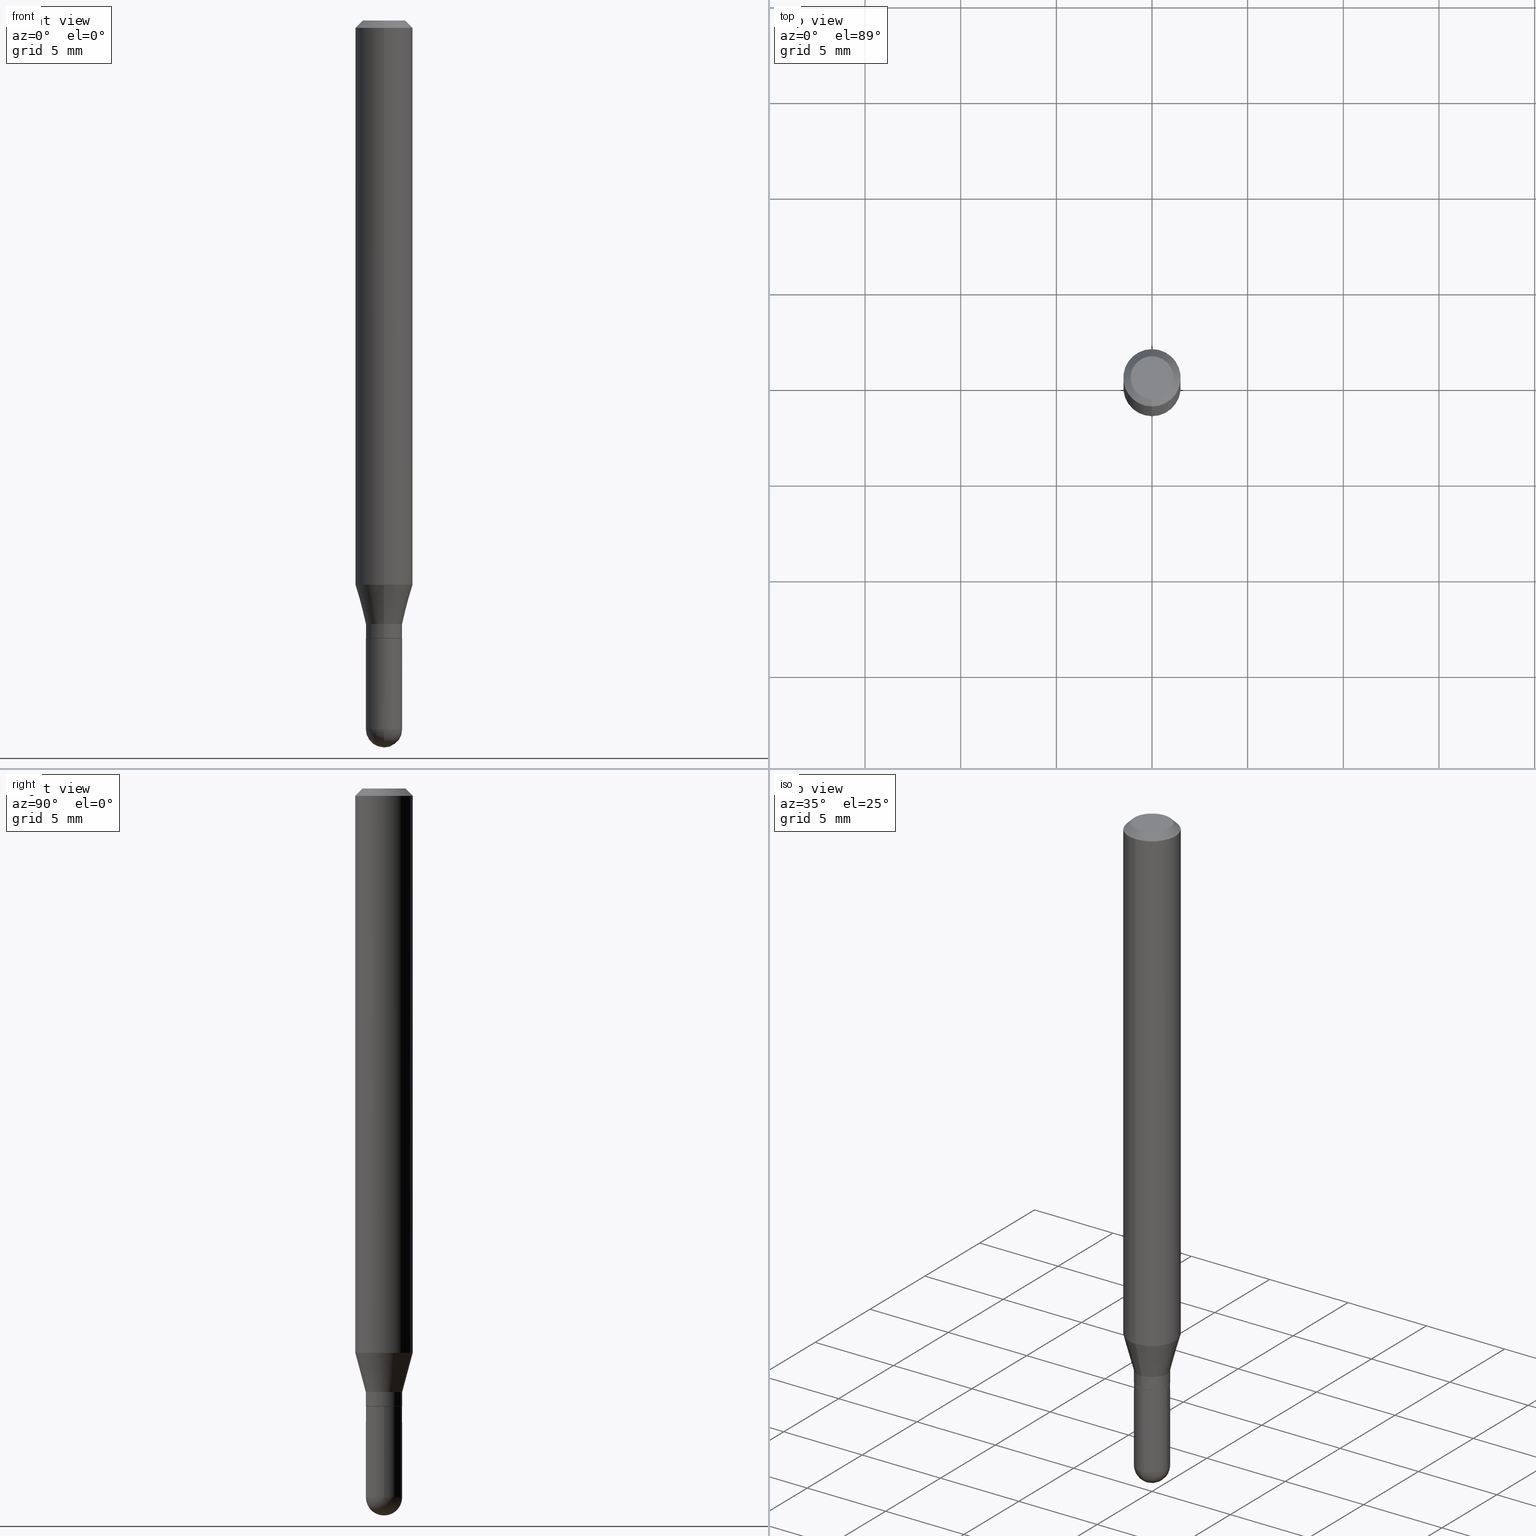
[diagram: canonical four-view strip — front | top / right | iso, engineering-drawing reading convention]
A machine part, canonical four-view strip (front | top / right | iso — engineering-drawing reading convention). The complete STEP part file that produces these views, byte-faithful:
ISO-10303-21;
HEADER;
FILE_DESCRIPTION (( 'STEP AP203' ),
    '1' );
FILE_NAME ('01988.STEP',
    '2024-03-07T19:51:54',
    ( '' ),
    ( '' ),
    'SwSTEP 2.0',
    'SolidWorks 2023',
    '' );
FILE_SCHEMA (( 'CONFIG_CONTROL_DESIGN' ));
ENDSEC;

DATA;
#1 = LINE ( 'NONE', #163, #359 ) ;
#2 = VERTEX_POINT ( 'NONE', #440 ) ;
#3 = DIRECTION ( 'NONE',  ( 1.000000000000000000, -7.105427357601001070E-15, 4.926315508542082329E-29 ) ) ;
#4 = CIRCLE ( 'NONE', #19, 0.03739999999999999575 ) ;
#5 = LINE ( 'NONE', #363, #28 ) ;
#6 = DIRECTION ( 'NONE',  ( -6.982962677686265133E-15, -1.000000000000000000, 3.491483979967474240E-15 ) ) ;
#7 = CIRCLE ( 'NONE', #416, 0.05904999999999999832 ) ;
#8 = DIRECTION ( 'NONE',  ( -2.445466961897875281E-29, 3.491483979967474240E-15, 1.000000000000000000 ) ) ;
#9 = ORIENTED_EDGE ( 'NONE', *, *, #456, .T. ) ;
#10 = FACE_OUTER_BOUND ( 'NONE', #144, .T. ) ;
#11 = EDGE_CURVE ( 'NONE', #348, #459, #488, .T. ) ;
#12 = DATE_AND_TIME ( #371, #239 ) ;
#13 = EDGE_CURVE ( 'NONE', #138, #424, #52, .T. ) ;
#14 = AXIS2_PLACEMENT_3D ( 'NONE', #469, #117, #283 ) ;
#15 =( NAMED_UNIT ( * ) SI_UNIT ( $, .STERADIAN. ) SOLID_ANGLE_UNIT ( ) );
#16 = FACE_OUTER_BOUND ( 'NONE', #35, .T. ) ;
#17 = DIRECTION ( 'NONE',  ( 1.000000000000000000, 0.000000000000000000, 0.000000000000000000 ) ) ;
#18 = ORIENTED_EDGE ( 'NONE', *, *, #494, .T. ) ;
#19 = AXIS2_PLACEMENT_3D ( 'NONE', #502, #112, #132 ) ;
#20 = DIRECTION ( 'NONE',  ( -6.982962677686265922E-15, -1.000000000000000000, 0.000000000000000000 ) ) ;
#21 = ORIENTED_EDGE ( 'NONE', *, *, #356, .T. ) ;
#22 = APPROVAL_DATE_TIME ( #426, #484 ) ;
#23 = CARTESIAN_POINT ( 'NONE',  ( 3.564007025660728008E-29, -5.097604007999306661E-15, -1.458699999999999886 ) ) ;
#24 = CARTESIAN_POINT ( 'NONE',  ( 3.109900335445528210E-29, -4.440120177324636638E-15, -1.271700000000000053 ) ) ;
#25 = ORIENTED_EDGE ( 'NONE', *, *, #403, .T. ) ;
#26 = DIRECTION ( 'NONE',  ( -2.445466961897875281E-29, 3.491483979967474240E-15, 1.000000000000000000 ) ) ;
#27 = VECTOR ( 'NONE', #439, 39.37007874015748143 ) ;
#28 = VECTOR ( 'NONE', #211, 39.37007874015748854 ) ;
#29 = CALENDAR_DATE ( 2024, 7, 3 ) ;
#30 = EDGE_LOOP ( 'NONE', ( #323, #475, #470, #185 ) ) ;
#31 = CARTESIAN_POINT ( 'NONE',  ( 3.564007025660728008E-29, -5.097604007999306661E-15, -1.458699999999999886 ) ) ;
#32 = DIRECTION ( 'NONE',  ( 6.982962677686265922E-15, 1.000000000000000000, -3.505890868245046092E-15 ) ) ;
#33 = VERTEX_POINT ( 'NONE', #51 ) ;
#34 = DIRECTION ( 'NONE',  ( -4.851104656540964275E-15, -0.7071067811865500152, -0.7071067811865450192 ) ) ;
#35 = EDGE_LOOP ( 'NONE', ( #187, #310, #147, #64 ) ) ;
#36 = ORIENTED_EDGE ( 'NONE', *, *, #346, .T. ) ;
#37 = AXIS2_PLACEMENT_3D ( 'NONE', #511, #160, #287 ) ;
#38 = CARTESIAN_POINT ( 'NONE',  ( 2.657429831742768970E-16, 0.03739999999999992636, -1.305815008507832765E-16 ) ) ;
#39 = VERTEX_POINT ( 'NONE', #55 ) ;
#40 = CARTESIAN_POINT ( 'NONE',  ( 5.835404209385290125E-46, -8.331423254187618082E-32, -2.386212653985951345E-17 ) ) ;
#41 = ADVANCED_FACE ( 'NONE', ( #214 ), #94, .F. ) ;
#42 = DIRECTION ( 'NONE',  ( -2.445468806185136597E-29, 3.491481338843145583E-15, 1.000000000000000000 ) ) ;
#43 = ADVANCED_FACE ( 'NONE', ( #79 ), #190, .T. ) ;
#44 = DIRECTION ( 'NONE',  ( 1.000000000000000000, -6.982962677686276177E-15, 0.000000000000000000 ) ) ;
#45 = AXIS2_PLACEMENT_3D ( 'NONE', #374, #449, #20 ) ;
#46 = APPROVAL_PERSON_ORGANIZATION ( #385, #484, #461 ) ;
#47 = CARTESIAN_POINT ( 'NONE',  ( 2.839923472905117553E-29, -4.054664186624940200E-15, -1.161301100016134846 ) ) ;
#48 = CC_DESIGN_PERSON_AND_ORGANIZATION_ASSIGNMENT ( #410, #58, ( #229 ) ) ;
#49 = PERSON_AND_ORGANIZATION ( #325, #407 ) ;
#50 = DIRECTION ( 'NONE',  ( -2.445466961897875281E-29, 3.491483979967474240E-15, 1.000000000000000000 ) ) ;
#51 = CARTESIAN_POINT ( 'NONE',  ( -2.576713228065921345E-16, -0.03690000000000443620, -1.271700000000000275 ) ) ;
#52 = CIRCLE ( 'NONE', #255, 0.03740000000000000269 ) ;
#53 = CONICAL_SURFACE ( 'NONE', #168, 0.05904999999999999832, 0.7853981633974483900 ) ;
#54 = EDGE_LOOP ( 'NONE', ( #467, #409, #496, #313 ) ) ;
#55 = CARTESIAN_POINT ( 'NONE',  ( 3.653868398051285621E-29, -5.230475499586445750E-15, -1.496099999999999985 ) ) ;
#56 = EDGE_LOOP ( 'NONE', ( #145, #258, #261, #288, #336 ) ) ;
#57 = LINE ( 'NONE', #302, #128 ) ;
#58 = PERSON_AND_ORGANIZATION_ROLE ( 'creator' ) ;
#59 = ORIENTED_EDGE ( 'NONE', *, *, #177, .F. ) ;
#60 = DIRECTION ( 'NONE',  ( -6.982962677686265133E-15, -1.000000000000000000, 3.491483979967474240E-15 ) ) ;
#61 = AXIS2_PLACEMENT_3D ( 'NONE', #462, #26, #60 ) ;
#62 = AXIS2_PLACEMENT_3D ( 'NONE', #423, #72, #32 ) ;
#63 = COORDINATED_UNIVERSAL_TIME_OFFSET ( 5, 0, .BEHIND. ) ;
#64 = ORIENTED_EDGE ( 'NONE', *, *, #133, .F. ) ;
#65 = EDGE_CURVE ( 'NONE', #495, #424, #142, .T. ) ;
#66 = VERTEX_POINT ( 'NONE', #265 ) ;
#67 = VERTEX_POINT ( 'NONE', #504 ) ;
#68 = APPLICATION_CONTEXT ( 'configuration controlled 3d designs of mechanical parts and assemblies' ) ;
#69 = DIRECTION ( 'NONE',  ( 5.024295867785445738E-15, 0.7071067811861817543, 0.7071067811869132802 ) ) ;
#70 = CIRCLE ( 'NONE', #297, 0.05904999999999999832 ) ;
#71 = ORIENTED_EDGE ( 'NONE', *, *, #77, .F. ) ;
#72 = DIRECTION ( 'NONE',  ( 2.445466961897875281E-29, -3.491483979967474240E-15, -1.000000000000000000 ) ) ;
#73 = ORIENTED_EDGE ( 'NONE', *, *, #13, .T. ) ;
#74 = EDGE_CURVE ( 'NONE', #162, #235, #285, .T. ) ;
#75 = DIRECTION ( 'NONE',  ( -2.445466961897875561E-29, 3.491483979967474635E-15, 1.000000000000000000 ) ) ;
#76 = CYLINDRICAL_SURFACE ( 'NONE', #382, 0.05904999999999999832 ) ;
#77 = EDGE_CURVE ( 'NONE', #121, #377, #4, .T. ) ;
#78 = PLANE ( 'NONE',  #386 ) ;
#79 = FACE_OUTER_BOUND ( 'NONE', #125, .T. ) ;
#80 = LINE ( 'NONE', #236, #443 ) ;
#81 = DIRECTION ( 'NONE',  ( 1.000000000000000000, -6.982962677686266711E-15, 4.876176775795936353E-29 ) ) ;
#82 = EDGE_LOOP ( 'NONE', ( #217, #352 ) ) ;
#83 = VECTOR ( 'NONE', #482, 39.37007874015748143 ) ;
#84 = DIRECTION ( 'NONE',  ( -2.445466961897875281E-29, 3.491483979967474240E-15, 1.000000000000000000 ) ) ;
#85 = CARTESIAN_POINT ( 'NONE',  ( 3.567205347582258439E-29, -5.093023828970496460E-15, -1.458699999999999886 ) ) ;
#86 = CARTESIAN_POINT ( 'NONE',  ( -0.03740000000000000269, -4.500827340614384492E-15, -1.271700000000000053 ) ) ;
#87 = MANIFOLD_SOLID_BREP ( 'Body-Move/Copy2[1]', #315 ) ;
#88 = CARTESIAN_POINT ( 'NONE',  ( 0.03740000000000000269, -4.701279622752295282E-15, -1.271700000000000053 ) ) ;
#89 = AXIS2_PLACEMENT_3D ( 'NONE', #406, #364, #6 ) ;
#90 = DIRECTION ( 'NONE',  ( -6.982962677686265922E-15, -1.000000000000000000, 4.626330217890369336E-15 ) ) ;
#91 = AXIS2_PLACEMENT_3D ( 'NONE', #149, #505, #264 ) ;
#92 = ADVANCED_FACE ( 'NONE', ( #111 ), #340, .T. ) ;
#93 = FACE_OUTER_BOUND ( 'NONE', #192, .T. ) ;
#94 = PLANE ( 'NONE',  #279 ) ;
#95 = PERSON_AND_ORGANIZATION ( #325, #407 ) ;
#96 = DIRECTION ( 'NONE',  ( -6.982962677686265133E-15, -1.000000000000000000, 3.491483979967474240E-15 ) ) ;
#97 = VECTOR ( 'NONE', #274, 39.37007874015748854 ) ;
#98 = PERSON_AND_ORGANIZATION_ROLE ( 'design_owner' ) ;
#99 = FACE_OUTER_BOUND ( 'NONE', #54, .T. ) ;
#100 = DIRECTION ( 'NONE',  ( -2.445466961897875281E-29, 3.491483979967474240E-15, 1.000000000000000000 ) ) ;
#101 = CARTESIAN_POINT ( 'NONE',  ( 4.123439461173743285E-16, 0.05904999999999994975, -0.01500000000000023016 ) ) ;
#102 = ORIENTED_EDGE ( 'NONE', *, *, #153, .T. ) ;
#103 = ORIENTED_EDGE ( 'NONE', *, *, #356, .F. ) ;
#104 = PERSON_AND_ORGANIZATION ( #325, #407 ) ;
#105 = ORIENTED_EDGE ( 'NONE', *, *, #13, .F. ) ;
#106 = EDGE_LOOP ( 'NONE', ( #59, #463, #115, #307 ) ) ;
#107 = CIRCLE ( 'NONE', #372, 0.03739999999999964880 ) ;
#108 = CC_DESIGN_PERSON_AND_ORGANIZATION_ASSIGNMENT ( #219, #282, ( #229 ) ) ;
#109 = CARTESIAN_POINT ( 'NONE',  ( 4.195754854663675961E-16, 0.05904999999999994281, -0.01500000000000023016 ) ) ;
#110 = VERTEX_POINT ( 'NONE', #477 ) ;
#111 = FACE_OUTER_BOUND ( 'NONE', #455, .T. ) ;
#112 = DIRECTION ( 'NONE',  ( -2.445468806185136597E-29, 3.491481338843145583E-15, 1.000000000000000000 ) ) ;
#113 = PRODUCT ( '01988', '01988', '', ( #216 ) ) ;
#114 = CARTESIAN_POINT ( 'NONE',  ( -4.123439461173736383E-16, -0.05905000000000005383, -0.01499999999999981730 ) ) ;
#115 = ORIENTED_EDGE ( 'NONE', *, *, #471, .T. ) ;
#116 = CARTESIAN_POINT ( 'NONE',  ( -4.123439461173739834E-16, -0.05904999999999999832, 2.061721290170793530E-16 ) ) ;
#117 = DIRECTION ( 'NONE',  ( -2.445466961897875281E-29, 3.491483979967474240E-15, 1.000000000000000000 ) ) ;
#118 = ADVANCED_FACE ( 'NONE', ( #366 ), #429, .T. ) ;
#119 = CARTESIAN_POINT ( 'NONE',  ( 0.000000000000000000, 0.000000000000000000, 0.000000000000000000 ) ) ;
#120 = LINE ( 'NONE', #38, #83 ) ;
#121 = VERTEX_POINT ( 'NONE', #447 ) ;
#122 = APPROVAL_PERSON_ORGANIZATION ( #143, #267, #332 ) ;
#123 = DIRECTION ( 'NONE',  ( -6.982962677686265922E-15, -1.000000000000000000, 3.505890868245046092E-15 ) ) ;
#124 = DIRECTION ( 'NONE',  ( 2.445466961897874720E-29, -3.491483979967474635E-15, -1.000000000000000000 ) ) ;
#125 = EDGE_LOOP ( 'NONE', ( #231, #384, #342, #375 ) ) ;
#126 = DIRECTION ( 'NONE',  ( -6.982962677686265133E-15, -1.000000000000000000, 0.000000000000000000 ) ) ;
#127 = EDGE_CURVE ( 'NONE', #67, #204, #506, .T. ) ;
#128 = VECTOR ( 'NONE', #69, 39.37007874015748143 ) ;
#129 = DIRECTION ( 'NONE',  ( -2.445468806185136597E-29, 3.491481338843145583E-15, 1.000000000000000000 ) ) ;
#130 = CIRCLE ( 'NONE', #435, 0.03739999999999999575 ) ;
#131 = LOCAL_TIME ( 14, 51, 54.00000000000000000, #212 ) ;
#132 = DIRECTION ( 'NONE',  ( 1.000000000000000000, -6.982962677686276177E-15, 0.000000000000000000 ) ) ;
#133 = EDGE_CURVE ( 'NONE', #33, #348, #80, .T. ) ;
#134 = CALENDAR_DATE ( 2024, 7, 3 ) ;
#135 = PRODUCT_DEFINITION_SHAPE ( 'NONE', 'NONE',  #433 ) ;
#136 = APPROVAL_STATUS ( 'not_yet_approved' ) ;
#137 = AXIS2_PLACEMENT_3D ( 'NONE', #357, #198, #503 ) ;
#138 = VERTEX_POINT ( 'NONE', #88 ) ;
#139 = CIRCLE ( 'NONE', #331, 0.03740000000000019698 ) ;
#140 = CC_DESIGN_APPROVAL ( #146, ( #229 ) ) ;
#141 = CARTESIAN_POINT ( 'NONE',  ( -2.611628041454373603E-16, -0.03740000000000453378, -1.242099999999999760 ) ) ;
#142 = LINE ( 'NONE', #334, #358 ) ;
#143 = PERSON_AND_ORGANIZATION ( #325, #407 ) ;
#144 = EDGE_LOOP ( 'NONE', ( #454, #273 ) ) ;
#145 = ORIENTED_EDGE ( 'NONE', *, *, #65, .F. ) ;
#146 = APPROVAL ( #136, 'UNSPECIFIED' ) ;
#147 = ORIENTED_EDGE ( 'NONE', *, *, #11, .F. ) ;
#148 = AXIS2_PLACEMENT_3D ( 'NONE', #205, #242, #81 ) ;
#149 = CARTESIAN_POINT ( 'NONE',  ( 0.000000000000000000, 0.000000000000000000, 0.000000000000000000 ) ) ;
#150 = CYLINDRICAL_SURFACE ( 'NONE', #91, 0.05904999999999999832 ) ;
#151 = SHAPE_DEFINITION_REPRESENTATION ( #135, #170 ) ;
#152 = ORIENTED_EDGE ( 'NONE', *, *, #207, .F. ) ;
#153 = EDGE_CURVE ( 'NONE', #424, #138, #155, .T. ) ;
#154 = FACE_OUTER_BOUND ( 'NONE', #468, .T. ) ;
#155 = CIRCLE ( 'NONE', #270, 0.03740000000000000269 ) ;
#156 = CIRCLE ( 'NONE', #445, 0.03739999999999999575 ) ;
#157 = CC_DESIGN_APPROVAL ( #484, ( #215 ) ) ;
#158 = DIRECTION ( 'NONE',  ( 1.000000000000000000, -6.982962677686274599E-15, 0.000000000000000000 ) ) ;
#159 = DIRECTION ( 'NONE',  ( -1.000000000000000000, 6.982962677686265922E-15, -4.876176775795935793E-29 ) ) ;
#160 = DIRECTION ( 'NONE',  ( -2.445466961897875281E-29, 3.491483979967474240E-15, 1.000000000000000000 ) ) ;
#161 = ADVANCED_FACE ( 'NONE', ( #317 ), #78, .F. ) ;
#162 = VERTEX_POINT ( 'NONE', #338 ) ;
#163 = CARTESIAN_POINT ( 'NONE',  ( 0.03739999999999999575, -2.611628041454663509E-16, 1.823690114147680082E-30 ) ) ;
#164 = ADVANCED_FACE ( 'NONE', ( #193 ), #309, .T. ) ;
#165 = ORIENTED_EDGE ( 'NONE', *, *, #414, .F. ) ;
#166 = ORIENTED_EDGE ( 'NONE', *, *, #343, .F. ) ;
#167 = DIRECTION ( 'NONE',  ( 1.000000000000000000, -6.982962677686276177E-15, 0.000000000000000000 ) ) ;
#168 = AXIS2_PLACEMENT_3D ( 'NONE', #399, #479, #206 ) ;
#169 = CARTESIAN_POINT ( 'NONE',  ( 2.639666263349065723E-16, 0.03689999999999556135, -1.271700000000000275 ) ) ;
#170 = ADVANCED_BREP_SHAPE_REPRESENTATION ( '01988', ( #87, #254, #271 ), #316 ) ;
#171 = EDGE_CURVE ( 'NONE', #39, #121, #222, .T. ) ;
#172 = FACE_OUTER_BOUND ( 'NONE', #286, .T. ) ;
#173 = CARTESIAN_POINT ( 'NONE',  ( 3.564007025660728008E-29, -5.097604007999306661E-15, -1.458699999999999886 ) ) ;
#174 = CC_DESIGN_DATE_AND_TIME_ASSIGNMENT ( #12, #486, ( #433 ) ) ;
#175 = CARTESIAN_POINT ( 'NONE',  ( 0.000000000000000000, 0.000000000000000000, 0.000000000000000000 ) ) ;
#176 = CIRCLE ( 'NONE', #365, 0.05904999999999999832 ) ;
#177 = EDGE_CURVE ( 'NONE', #183, #431, #296, .T. ) ;
#178 = APPLICATION_PROTOCOL_DEFINITION ( 'international standard', 'config_control_design', 1994, #345 ) ;
#179 = LINE ( 'NONE', #141, #97 ) ;
#180 = CARTESIAN_POINT ( 'NONE',  ( -0.03739999999999999575, -4.500827340614384492E-15, -1.458699999999999886 ) ) ;
#181 = ORIENTED_EDGE ( 'NONE', *, *, #171, .F. ) ;
#182 = AXIS2_PLACEMENT_3D ( 'NONE', #339, #50, #96 ) ;
#183 = VERTEX_POINT ( 'NONE', #232 ) ;
#184 = EDGE_CURVE ( 'NONE', #458, #459, #57, .T. ) ;
#185 = ORIENTED_EDGE ( 'NONE', *, *, #249, .T. ) ;
#186 = ORIENTED_EDGE ( 'NONE', *, *, #343, .T. ) ;
#187 = ORIENTED_EDGE ( 'NONE', *, *, #480, .T. ) ;
#188 = DESIGN_CONTEXT ( 'detailed design', #345, 'design' ) ;
#189 = LINE ( 'NONE', #314, #291 ) ;
#190 = CONICAL_SURFACE ( 'NONE', #245, 0.03690000000000000224, 0.7853981633969275844 ) ;
#191 = CIRCLE ( 'NONE', #474, 0.03739999999999986391 ) ;
#192 = EDGE_LOOP ( 'NONE', ( #411, #21, #278, #152 ) ) ;
#193 = FACE_OUTER_BOUND ( 'NONE', #464, .T. ) ;
#194 = ADVANCED_FACE ( 'NONE', ( #16 ), #347, .T. ) ;
#195 = DATE_AND_TIME ( #29, #396 ) ;
#196 = CARTESIAN_POINT ( 'NONE',  ( 3.564007025660728008E-29, -5.097604007999306661E-15, -1.458699999999999886 ) ) ;
#197 = DIRECTION ( 'NONE',  ( -6.982962677686266711E-15, -1.000000000000000000, 0.000000000000000000 ) ) ;
#198 = DIRECTION ( 'NONE',  ( -2.445468806185136597E-29, 3.491481338843145583E-15, 1.000000000000000000 ) ) ;
#199 = AXIS2_PLACEMENT_3D ( 'NONE', #31, #378, #388 ) ;
#200 = VECTOR ( 'NONE', #257, 39.37007874015748143 ) ;
#201 = DIRECTION ( 'NONE',  ( -6.982962677686265922E-15, -1.000000000000000000, 0.000000000000000000 ) ) ;
#202 = ADVANCED_FACE ( 'NONE', ( #381 ), #150, .T. ) ;
#203 = DIRECTION ( 'NONE',  ( 1.000000000000000000, -6.982962677686265922E-15, 4.883557194083112901E-29 ) ) ;
#204 = VERTEX_POINT ( 'NONE', #109 ) ;
#205 = CARTESIAN_POINT ( 'NONE',  ( 0.000000000000000000, 0.000000000000000000, 0.000000000000000000 ) ) ;
#206 = DIRECTION ( 'NONE',  ( 6.982962677686265922E-15, 1.000000000000000000, -3.505890868245046092E-15 ) ) ;
#207 = EDGE_CURVE ( 'NONE', #348, #66, #189, .T. ) ;
#208 = CIRCLE ( 'NONE', #489, 0.03690000000000000224 ) ;
#209 = DIRECTION ( 'NONE',  ( -2.445466961897875281E-29, 3.491483979967474240E-15, 1.000000000000000000 ) ) ;
#210 = EDGE_CURVE ( 'NONE', #66, #162, #179, .T. ) ;
#211 = DIRECTION ( 'NONE',  ( 1.839019923739604654E-15, 0.2588190451025255689, 0.9659258262890669799 ) ) ;
#212 = COORDINATED_UNIVERSAL_TIME_OFFSET ( 5, 0, .BEHIND. ) ;
#213 = AXIS2_PLACEMENT_3D ( 'NONE', #327, #8, #362 ) ;
#214 = FACE_OUTER_BOUND ( 'NONE', #322, .T. ) ;
#215 = SECURITY_CLASSIFICATION ( '', '', #268 ) ;
#216 = MECHANICAL_CONTEXT ( 'NONE', #68, 'mechanical' ) ;
#217 = ORIENTED_EDGE ( 'NONE', *, *, #480, .F. ) ;
#218 = DIRECTION ( 'NONE',  ( -6.982962677686266711E-15, -1.000000000000000000, 0.000000000000000000 ) ) ;
#219 = PERSON_AND_ORGANIZATION ( #325, #407 ) ;
#220 = DIRECTION ( 'NONE',  ( -2.445466961897875281E-29, 3.491483979967474240E-15, 1.000000000000000000 ) ) ;
#221 = EDGE_CURVE ( 'NONE', #459, #348, #107, .T. ) ;
#222 = CIRCLE ( 'NONE', #199, 0.03739999999999986391 ) ;
#223 = CALENDAR_DATE ( 2024, 7, 3 ) ;
#224 = PERSON_AND_ORGANIZATION_ROLE ( 'classification_officer' ) ;
#225 = DIRECTION ( 'NONE',  ( -6.982962677686265922E-15, -1.000000000000000000, 3.491483979967474240E-15 ) ) ;
#226 = AXIS2_PLACEMENT_3D ( 'NONE', #391, #421, #197 ) ;
#227 = CC_DESIGN_PERSON_AND_ORGANIZATION_ASSIGNMENT ( #104, #224, ( #215 ) ) ;
#228 = AXIS2_PLACEMENT_3D ( 'NONE', #293, #124, #472 ) ;
#229 = PRODUCT_DEFINITION_FORMATION_WITH_SPECIFIED_SOURCE ( 'ANY', '', #113, .NOT_KNOWN. ) ;
#230 = DATE_TIME_ROLE ( 'classification_date' ) ;
#231 = ORIENTED_EDGE ( 'NONE', *, *, #184, .F. ) ;
#232 = CARTESIAN_POINT ( 'NONE',  ( -3.536586717851222218E-16, -0.04404999999999999888, 1.299377427777077181E-16 ) ) ;
#233 = LINE ( 'NONE', #393, #350 ) ;
#234 = CC_DESIGN_PERSON_AND_ORGANIZATION_ASSIGNMENT ( #446, #453, ( #433 ) ) ;
#235 = VERTEX_POINT ( 'NONE', #114 ) ;
#236 = CARTESIAN_POINT ( 'NONE',  ( -2.576713228065921345E-16, -0.03690000000000443620, -1.271700000000000275 ) ) ;
#237 = CARTESIAN_POINT ( 'NONE',  ( 3.567205347582258439E-29, -5.093023828970496460E-15, -1.458699999999999886 ) ) ;
#238 = CONICAL_SURFACE ( 'NONE', #14, 0.03740000000000019698, 0.2617993877991509066 ) ;
#239 = LOCAL_TIME ( 14, 51, 54.00000000000000000, #448 ) ;
#240 = CARTESIAN_POINT ( 'NONE',  ( 2.657429831743050987E-16, 0.03739999999999508301, -1.271200000000000108 ) ) ;
#241 = DIRECTION ( 'NONE',  ( -6.982962677686265922E-15, -1.000000000000000000, 0.000000000000000000 ) ) ;
#242 = DIRECTION ( 'NONE',  ( -2.445468806185136597E-29, 3.491481338843145583E-15, 1.000000000000000000 ) ) ;
#243 = DIRECTION ( 'NONE',  ( -2.445468806185136597E-29, 3.491481338843145583E-15, 1.000000000000000000 ) ) ;
#244 = ADVANCED_FACE ( 'NONE', ( #277 ), #395, .T. ) ;
#245 = AXIS2_PLACEMENT_3D ( 'NONE', #360, #100, #490 ) ;
#246 = CIRCLE ( 'NONE', #256, 0.04404999999999999888 ) ;
#247 = CC_DESIGN_SECURITY_CLASSIFICATION ( #215, ( #229 ) ) ;
#248 = DIRECTION ( 'NONE',  ( -2.445466961897875281E-29, 3.491483979967474240E-15, 1.000000000000000000 ) ) ;
#249 = EDGE_CURVE ( 'NONE', #204, #235, #176, .T. ) ;
#250 = UNCERTAINTY_MEASURE_WITH_UNIT (LENGTH_MEASURE( 1.000000000000000082E-05 ), #300, 'distance_accuracy_value', 'NONE');
#251 = CARTESIAN_POINT ( 'NONE',  ( 2.611628041454974123E-16, 0.03739999999999556179, -1.271700000000000053 ) ) ;
#252 = CC_DESIGN_DATE_AND_TIME_ASSIGNMENT ( #195, #230, ( #215 ) ) ;
#253 = LENGTH_MEASURE_WITH_UNIT ( LENGTH_MEASURE( 0.02539999999999999897 ), #408 );
#254 = MANIFOLD_SOLID_BREP ( 'Body-Move/Copy2[2]', #290 ) ;
#255 = AXIS2_PLACEMENT_3D ( 'NONE', #259, #483, #405 ) ;
#256 = AXIS2_PLACEMENT_3D ( 'NONE', #40, #442, #329 ) ;
#257 = DIRECTION ( 'NONE',  ( 4.937700262164548042E-15, 0.7071067811865451302, -0.7071067811865499042 ) ) ;
#258 = ORIENTED_EDGE ( 'NONE', *, *, #425, .T. ) ;
#259 = CARTESIAN_POINT ( 'NONE',  ( 3.109902680825638129E-29, -4.440116818606828093E-15, -1.271700000000000053 ) ) ;
#260 = APPROVAL_DATE_TIME ( #451, #146 ) ;
#261 = ORIENTED_EDGE ( 'NONE', *, *, #77, .T. ) ;
#262 = DIRECTION ( 'NONE',  ( -6.982962677686265922E-15, -1.000000000000000000, 3.491483979967474635E-15 ) ) ;
#263 = ADVANCED_FACE ( 'NONE', ( #99 ), #501, .T. ) ;
#264 = DIRECTION ( 'NONE',  ( -6.982962677686265922E-15, -1.000000000000000000, 3.491483979967474240E-15 ) ) ;
#265 = CARTESIAN_POINT ( 'NONE',  ( -2.611628041454373603E-16, -0.03740000000000453378, -1.242099999999999760 ) ) ;
#266 = DIRECTION ( 'NONE',  ( 0.000000000000000000, 0.000000000000000000, 1.000000000000000000 ) ) ;
#267 = APPROVAL ( #301, 'UNSPECIFIED' ) ;
#268 = SECURITY_CLASSIFICATION_LEVEL ( 'unclassified' ) ;
#269 = EDGE_LOOP ( 'NONE', ( #103, #312, #276, #165 ) ) ;
#270 = AXIS2_PLACEMENT_3D ( 'NONE', #441, #481, #158 ) ;
#271 = AXIS2_PLACEMENT_3D ( 'NONE', #175, #266, #17 ) ;
#272 = ADVANCED_FACE ( 'NONE', ( #420 ), #76, .T. ) ;
#273 = ORIENTED_EDGE ( 'NONE', *, *, #177, .T. ) ;
#274 = DIRECTION ( 'NONE',  ( -1.807323732225334478E-15, -0.2588190451025187966, 0.9659258262890687563 ) ) ;
#275 = EDGE_LOOP ( 'NONE', ( #413, #36, #418, #497 ) ) ;
#276 = ORIENTED_EDGE ( 'NONE', *, *, #207, .T. ) ;
#277 = FACE_OUTER_BOUND ( 'NONE', #106, .T. ) ;
#278 = ORIENTED_EDGE ( 'NONE', *, *, #494, .F. ) ;
#279 = AXIS2_PLACEMENT_3D ( 'NONE', #251, #509, #159 ) ;
#280 = CIRCLE ( 'NONE', #45, 0.03740000000000019698 ) ;
#281 = CC_DESIGN_APPROVAL ( #267, ( #433 ) ) ;
#282 = PERSON_AND_ORGANIZATION_ROLE ( 'design_supplier' ) ;
#283 = DIRECTION ( 'NONE',  ( -6.982962677686265922E-15, -1.000000000000000000, 0.000000000000000000 ) ) ;
#284 = ADVANCED_FACE ( 'NONE', ( #154 ), #238, .T. ) ;
#285 = LINE ( 'NONE', #116, #27 ) ;
#286 = EDGE_LOOP ( 'NONE', ( #18, #25, #376, #508 ) ) ;
#287 = DIRECTION ( 'NONE',  ( -6.982962677686265133E-15, -1.000000000000000000, 0.000000000000000000 ) ) ;
#288 = ORIENTED_EDGE ( 'NONE', *, *, #430, .T. ) ;
#289 = CARTESIAN_POINT ( 'NONE',  ( 2.839923472905117553E-29, -4.054664186624940200E-15, -1.161301100016134846 ) ) ;
#290 = CLOSED_SHELL ( 'NONE', ( #512, #194, #244, #202, #465, #284, #272, #389, #444, #161, #43, #118 ) ) ;
#291 = VECTOR ( 'NONE', #311, 39.37007874015748143 ) ;
#292 = CARTESIAN_POINT ( 'NONE',  ( 3.109900335445529331E-29, -4.440120177324638216E-15, -1.271700000000000275 ) ) ;
#293 = CARTESIAN_POINT ( 'NONE',  ( 3.075995059520799729E-16, 0.04404999999999999888, -1.657309325874969883E-16 ) ) ;
#294 = LINE ( 'NONE', #101, #200 ) ;
#295 = EDGE_LOOP ( 'NONE', ( #9, #402, #306, #355 ) ) ;
#296 = CIRCLE ( 'NONE', #61, 0.04404999999999999888 ) ;
#297 = AXIS2_PLACEMENT_3D ( 'NONE', #324, #209, #123 ) ;
#298 = DATE_AND_TIME ( #383, #131 ) ;
#299 = EDGE_CURVE ( 'NONE', #183, #235, #233, .T. ) ;
#300 =( CONVERSION_BASED_UNIT ( 'INCH', #253 ) LENGTH_UNIT ( ) NAMED_UNIT ( #419 ) );
#301 = APPROVAL_STATUS ( 'not_yet_approved' ) ;
#302 = CARTESIAN_POINT ( 'NONE',  ( 2.621902694955080459E-16, 0.03689999999999556135, -1.271700000000000275 ) ) ;
#303 = DIRECTION ( 'NONE',  ( -2.445468806185136877E-29, 3.491481338843145188E-15, 1.000000000000000000 ) ) ;
#304 = APPLICATION_PROTOCOL_DEFINITION ( 'international standard', 'config_control_design', 1994, #68 ) ;
#305 = EDGE_CURVE ( 'NONE', #458, #33, #387, .T. ) ;
#306 = ORIENTED_EDGE ( 'NONE', *, *, #471, .F. ) ;
#307 = ORIENTED_EDGE ( 'NONE', *, *, #491, .F. ) ;
#308 = CIRCLE ( 'NONE', #400, 0.05904999999999999832 ) ;
#309 = CYLINDRICAL_SURFACE ( 'NONE', #137, 0.03739999999999999575 ) ;
#310 = ORIENTED_EDGE ( 'NONE', *, *, #184, .T. ) ;
#311 = DIRECTION ( 'NONE',  ( -2.445466961897875561E-29, 3.491483979967474635E-15, 1.000000000000000000 ) ) ;
#312 = ORIENTED_EDGE ( 'NONE', *, *, #221, .T. ) ;
#313 = ORIENTED_EDGE ( 'NONE', *, *, #373, .F. ) ;
#314 = CARTESIAN_POINT ( 'NONE',  ( -2.611628041454658086E-16, -0.03739999999999992636, 1.305815008507832765E-16 ) ) ;
#315 = CLOSED_SHELL ( 'NONE', ( #164, #92, #41, #263, #319 ) ) ;
#316 =( GEOMETRIC_REPRESENTATION_CONTEXT ( 3 ) GLOBAL_UNCERTAINTY_ASSIGNED_CONTEXT ( ( #250 ) ) GLOBAL_UNIT_ASSIGNED_CONTEXT ( ( #300, #492, #15 ) ) REPRESENTATION_CONTEXT ( 'NONE', 'WORKASPACE' ) );
#317 = FACE_OUTER_BOUND ( 'NONE', #82, .T. ) ;
#318 = DIRECTION ( 'NONE',  ( 1.000000000000000000, -6.982962677686265922E-15, 4.883557194083112901E-29 ) ) ;
#319 = ADVANCED_FACE ( 'NONE', ( #398 ), #328, .T. ) ;
#320 = PLANE ( 'NONE',  #228 ) ;
#321 = EDGE_CURVE ( 'NONE', #39, #2, #191, .T. ) ;
#322 = EDGE_LOOP ( 'NONE', ( #73, #102 ) ) ;
#323 = ORIENTED_EDGE ( 'NONE', *, *, #299, .F. ) ;
#324 = CARTESIAN_POINT ( 'NONE',  ( 3.668200442846818877E-31, -5.237225969951219545E-17, -0.01500000000000002373 ) ) ;
#325 = PERSON ( 'UNSPECIFIED', 'UNSPECIFIED', 'UNSPECIFIED', ('UNSPECIFIED'), ('UNSPECIFIED'), ('UNSPECIFIED') ) ;
#326 = CIRCLE ( 'NONE', #450, 0.03739999999999999575 ) ;
#327 = CARTESIAN_POINT ( 'NONE',  ( 3.037514513373350346E-29, -4.336772251517599617E-15, -1.242099999999999760 ) ) ;
#328 = CYLINDRICAL_SURFACE ( 'NONE', #148, 0.03739999999999999575 ) ;
#329 = DIRECTION ( 'NONE',  ( -6.982962677686265133E-15, -1.000000000000000000, 3.491483979967474240E-15 ) ) ;
#330 = CC_DESIGN_PERSON_AND_ORGANIZATION_ASSIGNMENT ( #49, #98, ( #113 ) ) ;
#331 = AXIS2_PLACEMENT_3D ( 'NONE', #438, #473, #201 ) ;
#332 = APPROVAL_ROLE ( '' ) ;
#333 = ORIENTED_EDGE ( 'NONE', *, *, #430, .F. ) ;
#334 = CARTESIAN_POINT ( 'NONE',  ( -0.03739999999999999575, 2.657429831742774393E-16, -1.839681723755334690E-30 ) ) ;
#335 = APPROVAL_DATE_TIME ( #298, #267 ) ;
#336 = ORIENTED_EDGE ( 'NONE', *, *, #153, .F. ) ;
#337 = ORIENTED_EDGE ( 'NONE', *, *, #373, .T. ) ;
#338 = CARTESIAN_POINT ( 'NONE',  ( -4.123439461173458802E-16, -0.05905000000000408533, -1.161301100016134624 ) ) ;
#339 = CARTESIAN_POINT ( 'NONE',  ( 0.000000000000000000, 0.000000000000000000, 0.000000000000000000 ) ) ;
#340 = SPHERICAL_SURFACE ( 'NONE', #507, 0.03739999999999986391 ) ;
#341 = CYLINDRICAL_SURFACE ( 'NONE', #182, 0.03739999999999992636 ) ;
#342 = ORIENTED_EDGE ( 'NONE', *, *, #133, .T. ) ;
#343 = EDGE_CURVE ( 'NONE', #377, #2, #130, .T. ) ;
#344 = ORIENTED_EDGE ( 'NONE', *, *, #321, .T. ) ;
#345 = APPLICATION_CONTEXT ( 'configuration controlled 3d designs of mechanical parts and assemblies' ) ;
#346 = EDGE_CURVE ( 'NONE', #67, #162, #308, .T. ) ;
#347 = CONICAL_SURFACE ( 'NONE', #498, 0.03690000000000000224, 0.7853981633969275844 ) ;
#348 = VERTEX_POINT ( 'NONE', #394 ) ;
#349 = CARTESIAN_POINT ( 'NONE',  ( 3.108677601964578920E-29, -4.438374435334654091E-15, -1.271200000000000108 ) ) ;
#350 = VECTOR ( 'NONE', #34, 39.37007874015748143 ) ;
#351 = DIRECTION ( 'NONE',  ( -2.445466961897874720E-29, 3.491483979967474635E-15, 1.000000000000000000 ) ) ;
#352 = ORIENTED_EDGE ( 'NONE', *, *, #305, .F. ) ;
#353 = CARTESIAN_POINT ( 'NONE',  ( 3.109900335445529331E-29, -4.440120177324638216E-15, -1.271700000000000275 ) ) ;
#354 = DIRECTION ( 'NONE',  ( -2.445466961897875281E-29, 3.491483979967474240E-15, 1.000000000000000000 ) ) ;
#355 = ORIENTED_EDGE ( 'NONE', *, *, #74, .F. ) ;
#356 = EDGE_CURVE ( 'NONE', #459, #110, #120, .T. ) ;
#357 = CARTESIAN_POINT ( 'NONE',  ( 0.000000000000000000, 0.000000000000000000, 0.000000000000000000 ) ) ;
#358 = VECTOR ( 'NONE', #303, 39.37007874015748143 ) ;
#359 = VECTOR ( 'NONE', #434, 39.37007874015748143 ) ;
#360 = CARTESIAN_POINT ( 'NONE',  ( 3.109900335445529331E-29, -4.440120177324638216E-15, -1.271700000000000275 ) ) ;
#361 = CARTESIAN_POINT ( 'NONE',  ( 3.567205347582258439E-29, -5.093023828970496460E-15, -1.458699999999999886 ) ) ;
#362 = DIRECTION ( 'NONE',  ( -6.982962677686265922E-15, -1.000000000000000000, 0.000000000000000000 ) ) ;
#363 = CARTESIAN_POINT ( 'NONE',  ( 2.657429831743092403E-16, 0.03739999999999586017, -1.242099999999999760 ) ) ;
#364 = DIRECTION ( 'NONE',  ( -2.445466961897875281E-29, 3.491483979967474240E-15, 1.000000000000000000 ) ) ;
#365 = AXIS2_PLACEMENT_3D ( 'NONE', #487, #452, #390 ) ;
#366 = FACE_OUTER_BOUND ( 'NONE', #269, .T. ) ;
#367 = DIRECTION ( 'NONE',  ( -4.937700262161976356E-15, -0.7071067811861768693, 0.7071067811869181652 ) ) ;
#368 = DIRECTION ( 'NONE',  ( -2.445466961897875281E-29, 3.491483979967474240E-15, 1.000000000000000000 ) ) ;
#369 = EDGE_CURVE ( 'NONE', #431, #183, #246, .T. ) ;
#370 = CARTESIAN_POINT ( 'NONE',  ( 3.599717260347271507E-16, 0.04404999999999999888, -1.776619958574267450E-16 ) ) ;
#371 = CALENDAR_DATE ( 2024, 7, 3 ) ;
#372 = AXIS2_PLACEMENT_3D ( 'NONE', #349, #466, #218 ) ;
#373 = EDGE_CURVE ( 'NONE', #2, #495, #156, .T. ) ;
#374 = CARTESIAN_POINT ( 'NONE',  ( 3.037514513373350346E-29, -4.336772251517599617E-15, -1.242099999999999760 ) ) ;
#375 = ORIENTED_EDGE ( 'NONE', *, *, #221, .F. ) ;
#376 = ORIENTED_EDGE ( 'NONE', *, *, #456, .F. ) ;
#377 = VERTEX_POINT ( 'NONE', #432 ) ;
#378 = DIRECTION ( 'NONE',  ( -1.000000000000000000, 6.982962677686265922E-15, -4.883557194083112340E-29 ) ) ;
#379 = PRODUCT_RELATED_PRODUCT_CATEGORY ( 'detail', '', ( #113 ) ) ;
#380 = ORIENTED_EDGE ( 'NONE', *, *, #346, .F. ) ;
#381 = FACE_OUTER_BOUND ( 'NONE', #295, .T. ) ;
#382 = AXIS2_PLACEMENT_3D ( 'NONE', #119, #354, #225 ) ;
#383 = CALENDAR_DATE ( 2024, 7, 3 ) ;
#384 = ORIENTED_EDGE ( 'NONE', *, *, #305, .T. ) ;
#385 = PERSON_AND_ORGANIZATION ( #325, #407 ) ;
#386 = AXIS2_PLACEMENT_3D ( 'NONE', #24, #351, #262 ) ;
#387 = CIRCLE ( 'NONE', #37, 0.03690000000000000224 ) ;
#388 = DIRECTION ( 'NONE',  ( -6.982962677686265133E-15, -1.000000000000000000, 0.000000000000000000 ) ) ;
#389 = ADVANCED_FACE ( 'NONE', ( #437 ), #53, .T. ) ;
#390 = DIRECTION ( 'NONE',  ( -6.982962677686265922E-15, -1.000000000000000000, 3.505890868245046092E-15 ) ) ;
#391 = CARTESIAN_POINT ( 'NONE',  ( 3.108677601964578920E-29, -4.438374435334654091E-15, -1.271200000000000108 ) ) ;
#392 = ORIENTED_EDGE ( 'NONE', *, *, #414, .T. ) ;
#393 = CARTESIAN_POINT ( 'NONE',  ( -4.051124067684085231E-16, -0.05905000000000005383, -0.01499999999999981730 ) ) ;
#394 = CARTESIAN_POINT ( 'NONE',  ( -2.611628041454337611E-16, -0.03740000000000422153, -1.271200000000000108 ) ) ;
#395 = CONICAL_SURFACE ( 'NONE', #62, 0.05904999999999999832, 0.7853981633974483900 ) ;
#396 = LOCAL_TIME ( 14, 51, 54.00000000000000000, #417 ) ;
#397 = DIRECTION ( 'NONE',  ( -6.982962677686265922E-15, -1.000000000000000000, 4.626330217890369336E-15 ) ) ;
#398 = FACE_OUTER_BOUND ( 'NONE', #56, .T. ) ;
#399 = CARTESIAN_POINT ( 'NONE',  ( 3.668200442846818877E-31, -5.237225969951219545E-17, -0.01500000000000002373 ) ) ;
#400 = AXIS2_PLACEMENT_3D ( 'NONE', #47, #248, #397 ) ;
#401 = DIRECTION ( 'NONE',  ( 1.000000000000000000, -6.982962677686276177E-15, 0.000000000000000000 ) ) ;
#402 = ORIENTED_EDGE ( 'NONE', *, *, #127, .T. ) ;
#403 = EDGE_CURVE ( 'NONE', #110, #67, #5, .T. ) ;
#404 = APPROVAL_ROLE ( '' ) ;
#405 = DIRECTION ( 'NONE',  ( 1.000000000000000000, -6.982962677686274599E-15, 0.000000000000000000 ) ) ;
#406 = CARTESIAN_POINT ( 'NONE',  ( 0.000000000000000000, 0.000000000000000000, 0.000000000000000000 ) ) ;
#407 = ORGANIZATION ( 'UNSPECIFIED', 'UNSPECIFIED', '' ) ;
#408 =( LENGTH_UNIT ( ) NAMED_UNIT ( * ) SI_UNIT ( $, .METRE. ) );
#409 = ORIENTED_EDGE ( 'NONE', *, *, #171, .T. ) ;
#410 = PERSON_AND_ORGANIZATION ( #325, #407 ) ;
#411 = ORIENTED_EDGE ( 'NONE', *, *, #11, .T. ) ;
#412 = DIRECTION ( 'NONE',  ( -6.982962677686265133E-15, -1.000000000000000000, 0.000000000000000000 ) ) ;
#413 = ORIENTED_EDGE ( 'NONE', *, *, #127, .F. ) ;
#414 = EDGE_CURVE ( 'NONE', #110, #66, #139, .T. ) ;
#415 = VECTOR ( 'NONE', #75, 39.37007874015748143 ) ;
#416 = AXIS2_PLACEMENT_3D ( 'NONE', #289, #84, #90 ) ;
#417 = COORDINATED_UNIVERSAL_TIME_OFFSET ( 5, 0, .BEHIND. ) ;
#418 = ORIENTED_EDGE ( 'NONE', *, *, #74, .T. ) ;
#419 = DIMENSIONAL_EXPONENTS ( 1.000000000000000000, 0.000000000000000000, 0.000000000000000000, 0.000000000000000000, 0.000000000000000000, 0.000000000000000000, 0.000000000000000000 ) ;
#420 = FACE_OUTER_BOUND ( 'NONE', #275, .T. ) ;
#421 = DIRECTION ( 'NONE',  ( -2.445466961897875281E-29, 3.491483979967474240E-15, 1.000000000000000000 ) ) ;
#422 = CONICAL_SURFACE ( 'NONE', #213, 0.03740000000000019698, 0.2617993877991509066 ) ;
#423 = CARTESIAN_POINT ( 'NONE',  ( 3.668200442846818877E-31, -5.237225969951219545E-17, -0.01500000000000002373 ) ) ;
#424 = VERTEX_POINT ( 'NONE', #86 ) ;
#425 = EDGE_CURVE ( 'NONE', #495, #121, #326, .T. ) ;
#426 = DATE_AND_TIME ( #223, #500 ) ;
#427 = CARTESIAN_POINT ( 'NONE',  ( 4.195754854663390985E-16, 0.05904999999999999832, -2.061721290170793530E-16 ) ) ;
#428 = DIRECTION ( 'NONE',  ( -6.982962677686265922E-15, -1.000000000000000000, 0.000000000000000000 ) ) ;
#429 = CYLINDRICAL_SURFACE ( 'NONE', #89, 0.03739999999999992636 ) ;
#430 = EDGE_CURVE ( 'NONE', #377, #138, #1, .T. ) ;
#431 = VERTEX_POINT ( 'NONE', #370 ) ;
#432 = CARTESIAN_POINT ( 'NONE',  ( 0.03739999999999999575, -5.027733127934128282E-15, -1.458699999999999886 ) ) ;
#433 = PRODUCT_DEFINITION ( 'UNKNOWN', '', #229, #188 ) ;
#434 = DIRECTION ( 'NONE',  ( -2.445468806185136877E-29, 3.491481338843145188E-15, 1.000000000000000000 ) ) ;
#435 = AXIS2_PLACEMENT_3D ( 'NONE', #237, #42, #167 ) ;
#436 = LOCAL_TIME ( 14, 51, 54.00000000000000000, #485 ) ;
#437 = FACE_OUTER_BOUND ( 'NONE', #30, .T. ) ;
#438 = CARTESIAN_POINT ( 'NONE',  ( 3.037514513373350346E-29, -4.336772251517599617E-15, -1.242099999999999760 ) ) ;
#439 = DIRECTION ( 'NONE',  ( -2.445466961897875561E-29, 3.491483979967474635E-15, 1.000000000000000000 ) ) ;
#440 = CARTESIAN_POINT ( 'NONE',  ( 2.657429831743125929E-16, 0.03739999999999483321, -1.458699999999999886 ) ) ;
#441 = CARTESIAN_POINT ( 'NONE',  ( 3.109902680825638129E-29, -4.440116818606828093E-15, -1.271700000000000053 ) ) ;
#442 = DIRECTION ( 'NONE',  ( -2.445466961897875281E-29, 3.491483979967474240E-15, 1.000000000000000000 ) ) ;
#443 = VECTOR ( 'NONE', #367, 39.37007874015748143 ) ;
#444 = ADVANCED_FACE ( 'NONE', ( #10 ), #320, .F. ) ;
#445 = AXIS2_PLACEMENT_3D ( 'NONE', #85, #129, #401 ) ;
#446 = PERSON_AND_ORGANIZATION ( #325, #407 ) ;
#447 = CARTESIAN_POINT ( 'NONE',  ( -2.611628041454302112E-16, -0.03740000000000502645, -1.458699999999999886 ) ) ;
#448 = COORDINATED_UNIVERSAL_TIME_OFFSET ( 5, 0, .BEHIND. ) ;
#449 = DIRECTION ( 'NONE',  ( -2.445466961897875281E-29, 3.491483979967474240E-15, 1.000000000000000000 ) ) ;
#450 = AXIS2_PLACEMENT_3D ( 'NONE', #361, #243, #44 ) ;
#451 = DATE_AND_TIME ( #134, #436 ) ;
#452 = DIRECTION ( 'NONE',  ( -2.445466961897875281E-29, 3.491483979967474240E-15, 1.000000000000000000 ) ) ;
#453 = PERSON_AND_ORGANIZATION_ROLE ( 'creator' ) ;
#454 = ORIENTED_EDGE ( 'NONE', *, *, #369, .T. ) ;
#455 = EDGE_LOOP ( 'NONE', ( #181, #344, #166, #71 ) ) ;
#456 = EDGE_CURVE ( 'NONE', #162, #67, #7, .T. ) ;
#457 = APPROVAL_STATUS ( 'not_yet_approved' ) ;
#458 = VERTEX_POINT ( 'NONE', #169 ) ;
#459 = VERTEX_POINT ( 'NONE', #240 ) ;
#460 = AXIS2_PLACEMENT_3D ( 'NONE', #196, #318, #428 ) ;
#461 = APPROVAL_ROLE ( '' ) ;
#462 = CARTESIAN_POINT ( 'NONE',  ( 5.835404209385290125E-46, -8.331423254187618082E-32, -2.386212653985951345E-17 ) ) ;
#463 = ORIENTED_EDGE ( 'NONE', *, *, #299, .T. ) ;
#464 = EDGE_LOOP ( 'NONE', ( #337, #493, #105, #333, #186 ) ) ;
#465 = ADVANCED_FACE ( 'NONE', ( #172 ), #422, .T. ) ;
#466 = DIRECTION ( 'NONE',  ( -2.445466961897875281E-29, 3.491483979967474240E-15, 1.000000000000000000 ) ) ;
#467 = ORIENTED_EDGE ( 'NONE', *, *, #321, .F. ) ;
#468 = EDGE_LOOP ( 'NONE', ( #510, #392, #499, #380 ) ) ;
#469 = CARTESIAN_POINT ( 'NONE',  ( 3.037514513373350346E-29, -4.336772251517599617E-15, -1.242099999999999760 ) ) ;
#470 = ORIENTED_EDGE ( 'NONE', *, *, #491, .T. ) ;
#471 = EDGE_CURVE ( 'NONE', #235, #204, #70, .T. ) ;
#472 = DIRECTION ( 'NONE',  ( 6.982962677686265922E-15, 1.000000000000000000, -3.491483979967474635E-15 ) ) ;
#473 = DIRECTION ( 'NONE',  ( -2.445466961897875281E-29, 3.491483979967474240E-15, 1.000000000000000000 ) ) ;
#474 = AXIS2_PLACEMENT_3D ( 'NONE', #173, #3, #478 ) ;
#475 = ORIENTED_EDGE ( 'NONE', *, *, #369, .F. ) ;
#476 = APPROVAL_PERSON_ORGANIZATION ( #95, #146, #404 ) ;
#477 = CARTESIAN_POINT ( 'NONE',  ( 3.426592343203384675E-16, 0.03739999999999586017, -1.242099999999999760 ) ) ;
#478 = DIRECTION ( 'NONE',  ( 7.105427357601000281E-15, 1.000000000000000000, 0.000000000000000000 ) ) ;
#479 = DIRECTION ( 'NONE',  ( 2.445466961897875281E-29, -3.491483979967474240E-15, -1.000000000000000000 ) ) ;
#480 = EDGE_CURVE ( 'NONE', #33, #458, #208, .T. ) ;
#481 = DIRECTION ( 'NONE',  ( -2.445468806185136597E-29, 3.491481338843145583E-15, 1.000000000000000000 ) ) ;
#482 = DIRECTION ( 'NONE',  ( -2.445466961897875561E-29, 3.491483979967474635E-15, 1.000000000000000000 ) ) ;
#483 = DIRECTION ( 'NONE',  ( -2.445468806185136597E-29, 3.491481338843145583E-15, 1.000000000000000000 ) ) ;
#484 = APPROVAL ( #457, 'UNSPECIFIED' ) ;
#485 = COORDINATED_UNIVERSAL_TIME_OFFSET ( 5, 0, .BEHIND. ) ;
#486 = DATE_TIME_ROLE ( 'creation_date' ) ;
#487 = CARTESIAN_POINT ( 'NONE',  ( 3.668200442846818877E-31, -5.237225969951219545E-17, -0.01500000000000002373 ) ) ;
#488 = CIRCLE ( 'NONE', #226, 0.03739999999999964880 ) ;
#489 = AXIS2_PLACEMENT_3D ( 'NONE', #292, #368, #126 ) ;
#490 = DIRECTION ( 'NONE',  ( -6.982962677686265133E-15, -1.000000000000000000, 0.000000000000000000 ) ) ;
#491 = EDGE_CURVE ( 'NONE', #431, #204, #294, .T. ) ;
#492 =( NAMED_UNIT ( * ) PLANE_ANGLE_UNIT ( ) SI_UNIT ( $, .RADIAN. ) );
#493 = ORIENTED_EDGE ( 'NONE', *, *, #65, .T. ) ;
#494 = EDGE_CURVE ( 'NONE', #66, #110, #280, .T. ) ;
#495 = VERTEX_POINT ( 'NONE', #180 ) ;
#496 = ORIENTED_EDGE ( 'NONE', *, *, #425, .F. ) ;
#497 = ORIENTED_EDGE ( 'NONE', *, *, #249, .F. ) ;
#498 = AXIS2_PLACEMENT_3D ( 'NONE', #353, #220, #412 ) ;
#499 = ORIENTED_EDGE ( 'NONE', *, *, #210, .T. ) ;
#500 = LOCAL_TIME ( 14, 51, 54.00000000000000000, #63 ) ;
#501 = SPHERICAL_SURFACE ( 'NONE', #460, 0.03739999999999986391 ) ;
#502 = CARTESIAN_POINT ( 'NONE',  ( 3.567205347582258439E-29, -5.093023828970496460E-15, -1.458699999999999886 ) ) ;
#503 = DIRECTION ( 'NONE',  ( 1.000000000000000000, -6.982962677686266711E-15, 4.876176775795936353E-29 ) ) ;
#504 = CARTESIAN_POINT ( 'NONE',  ( 4.195754854663672510E-16, 0.05904999999999591132, -1.161301100016135068 ) ) ;
#505 = DIRECTION ( 'NONE',  ( -2.445466961897875281E-29, 3.491483979967474240E-15, 1.000000000000000000 ) ) ;
#506 = LINE ( 'NONE', #427, #415 ) ;
#507 = AXIS2_PLACEMENT_3D ( 'NONE', #23, #203, #241 ) ;
#508 = ORIENTED_EDGE ( 'NONE', *, *, #210, .F. ) ;
#509 = DIRECTION ( 'NONE',  ( 2.438088387897960049E-29, -3.491481338843145188E-15, -1.000000000000000000 ) ) ;
#510 = ORIENTED_EDGE ( 'NONE', *, *, #403, .F. ) ;
#511 = CARTESIAN_POINT ( 'NONE',  ( 3.109900335445529331E-29, -4.440120177324638216E-15, -1.271700000000000275 ) ) ;
#512 = ADVANCED_FACE ( 'NONE', ( #93 ), #341, .T. ) ;
ENDSEC;
END-ISO-10303-21;
